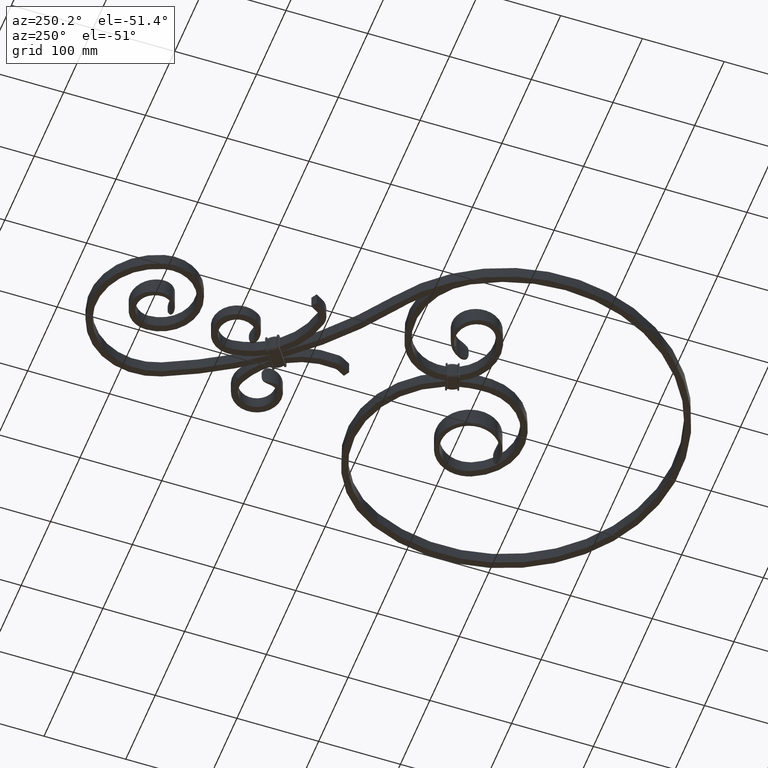
[diagram: clean part render]
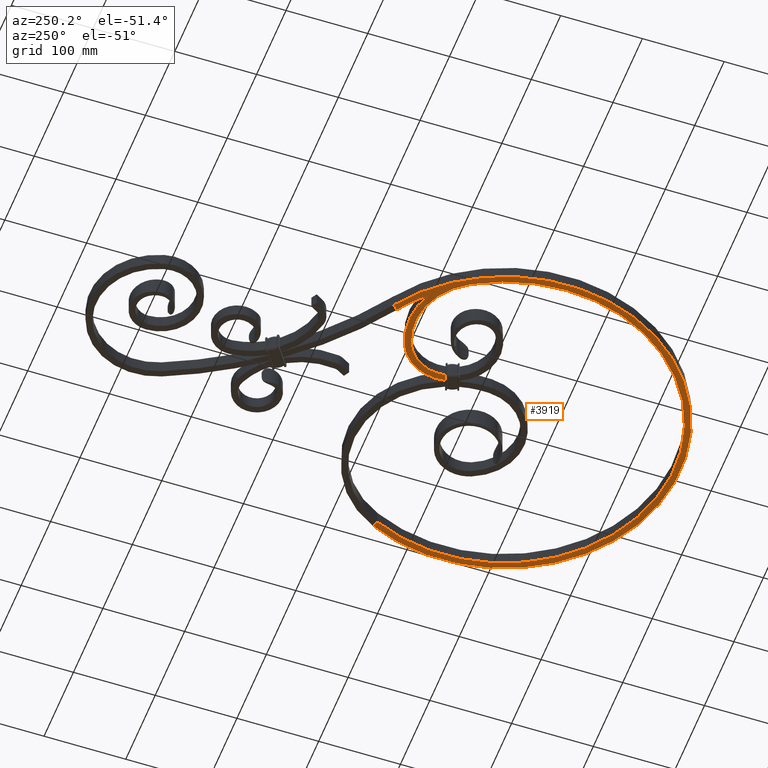
[diagram: same view with one face highlighted and labeled with its STEP entity id]
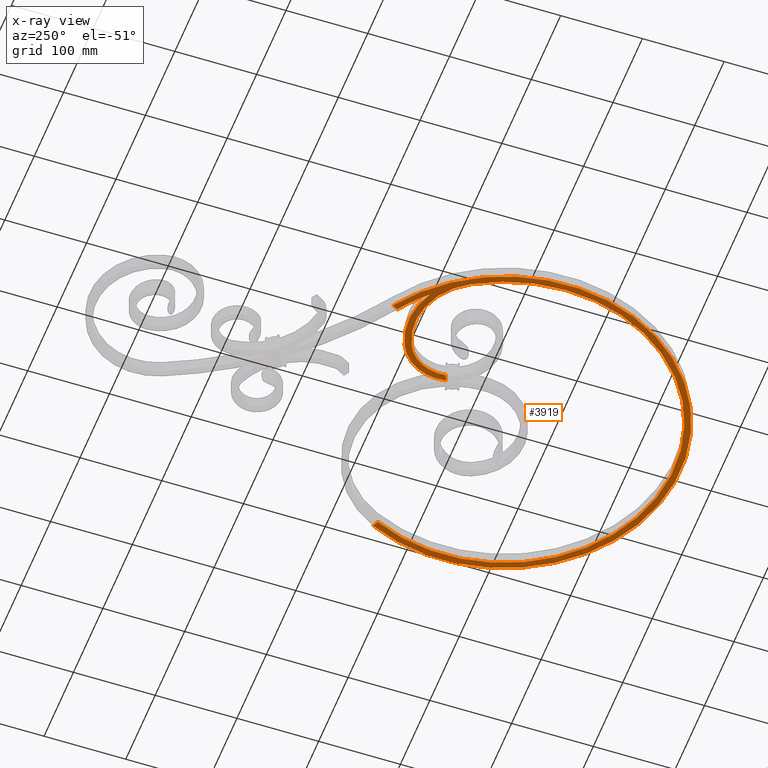
[diagram: x-ray of the same camera — body ghosted, the highlighted face saturated]
A machine part, auxiliary view. The second image highlights one B-rep face of the part: STEP entity #3919.
The next image is the same camera in x-ray: the body ghosted, the highlighted face saturated — about 0% of this face is hidden behind the body in this view.
In plain terms, the highlighted planar face has unit normal (-0, 0, -1).
Its self-contained STEP definition (entity closure, byte-faithful):
#981 = VERTEX_POINT ( 'NONE', #13501 ) ;
#1068 = DIRECTION ( 'NONE',  ( 1.000000000000000000, 0.000000000000000000, 0.000000000000000000 ) ) ;
#1156 = DIRECTION ( 'NONE',  ( -0.5519432724756188069, 0.8338816606503015594, 0.000000000000000000 ) ) ;
#1413 = CARTESIAN_POINT ( 'NONE',  ( 187.4867932403088560, -59.76344911916336855, -8.000000000000000000 ) ) ;
#1440 = CARTESIAN_POINT ( 'NONE',  ( -177.7859068469975057, -41.47560975609982137, -8.000000000000000000 ) ) ;
#1754 = CARTESIAN_POINT ( 'NONE',  ( -148.1103470283120771, -2.889056074054263679, -8.000000000000000000 ) ) ;
#1799 = CARTESIAN_POINT ( 'NONE',  ( -41.19751237565706958, -61.03284535278285006, -8.000000000000007105 ) ) ;
#1882 = CARTESIAN_POINT ( 'NONE',  ( -41.44403543703984383, -60.70040918255417495, -7.999999999999998224 ) ) ;
#1991 = DIRECTION ( 'NONE',  ( -0.5519432724756188069, 0.8338816606503015594, 0.000000000000000000 ) ) ;
#2193 = VERTEX_POINT ( 'NONE', #21779 ) ;
#2356 = ORIENTED_EDGE ( 'NONE', *, *, #22968, .T. ) ;
#2368 = ORIENTED_EDGE ( 'NONE', *, *, #21348, .T. ) ;
#2470 = AXIS2_PLACEMENT_3D ( 'NONE', #4671, #21317, #1068 ) ;
#2622 = ORIENTED_EDGE ( 'NONE', *, *, #9872, .F. ) ;
#2980 = AXIS2_PLACEMENT_3D ( 'NONE', #16616, #22241, #1991 ) ;
#3002 = CARTESIAN_POINT ( 'NONE',  ( 187.4867932403088560, -59.76344911916328329, -8.000000000000000000 ) ) ;
#3143 = DIRECTION ( 'NONE',  ( 0.000000000000000000, 0.000000000000000000, 1.000000000000000000 ) ) ;
#3441 = EDGE_CURVE ( 'NONE', #2193, #21456, #7836, .T. ) ;
#3462 = CARTESIAN_POINT ( 'NONE',  ( -132.5107105485927548, -30.55987532929423622, -8.000000000000000000 ) ) ;
#3784 = CARTESIAN_POINT ( 'NONE',  ( -42.00354003085679722, -60.24230092442795836, -8.000000000000000000 ) ) ;
#3919 = ADVANCED_FACE ( 'NONE', ( #18977 ), #8542, .T. ) ;
#3925 = AXIS2_PLACEMENT_3D ( 'NONE', #6746, #17859, #1156 ) ;
#4671 = CARTESIAN_POINT ( 'NONE',  ( -90.93716649349718750, -52.61343144355043933, -8.000000000000000000 ) ) ;
#4684 = CIRCLE ( 'NONE', #2980, 207.0000000000001137 ) ;
#4947 = DIRECTION ( 'NONE',  ( -1.000000000000000000, 0.000000000000000000, 0.000000000000000000 ) ) ;
#5119 = LINE ( 'NONE', #3002, #8553 ) ;
#5331 = EDGE_CURVE ( 'NONE', #6602, #16611, #14097, .T. ) ;
#5428 = CARTESIAN_POINT ( 'NONE',  ( -118.6678035822580313, 31.78455703981519775, -8.000000000000000000 ) ) ;
#5478 = CARTESIAN_POINT ( 'NONE',  ( -41.31980983160134002, -60.86804333350222151, -8.000000000000003553 ) ) ;
#6414 = CARTESIAN_POINT ( 'NONE',  ( -35.01792380272730298, -63.05948232502785089, -8.000000000000000000 ) ) ;
#6536 = CARTESIAN_POINT ( 'NONE',  ( -105.6409011699550575, -84.50000000000136424, -8.000000000000000000 ) ) ;
#6602 = VERTEX_POINT ( 'NONE', #1440 ) ;
#6746 = CARTESIAN_POINT ( 'NONE',  ( -1.665334536937734811E-13, -147.5000000000000284, -8.000000000000000000 ) ) ;
#6791 = EDGE_CURVE ( 'NONE', #981, #6602, #21541, .T. ) ;
#6959 = EDGE_CURVE ( 'NONE', #7763, #2193, #23876, .T. ) ;
#7223 = CARTESIAN_POINT ( 'NONE',  ( -41.73701762661197279, -60.41274993813826200, -8.000000000000000000 ) ) ;
#7465 = ORIENTED_EDGE ( 'NONE', *, *, #18483, .F. ) ;
#7523 = CARTESIAN_POINT ( 'NONE',  ( -41.90867752407184099, -60.29321759418958493, -8.000000000000003553 ) ) ;
#7763 = VERTEX_POINT ( 'NONE', #6414 ) ;
#7836 = CIRCLE ( 'NONE', #18943, 92.00000000000000000 ) ;
#7896 = CARTESIAN_POINT ( 'NONE',  ( -42.10406070864405592, -60.20933450284913135, -8.000000000000000000 ) ) ;
#8234 = EDGE_LOOP ( 'NONE', ( #14249, #2356, #14812, #21640, #14857, #11717, #2622, #7465, #19618, #2368, #21616, #20530 ) ) ;
#8542 = PLANE ( 'NONE',  #18012 ) ;
#8553 = VECTOR ( 'NONE', #12222, 1000.000000000000114 ) ;
#8613 = DIRECTION ( 'NONE',  ( 0.000000000000000000, 0.000000000000000000, 1.000000000000000000 ) ) ;
#9872 = EDGE_CURVE ( 'NONE', #19681, #16611, #5119, .T. ) ;
#9969 = VECTOR ( 'NONE', #15857, 1000.000000000000114 ) ;
#10321 = CARTESIAN_POINT ( 'NONE',  ( 194.7326596457314167, -56.37266454405857985, -8.000000000000000000 ) ) ;
#10450 = DIRECTION ( 'NONE',  ( 1.000000000000000000, 0.000000000000000000, 0.000000000000000000 ) ) ;
#10720 = CARTESIAN_POINT ( 'NONE',  ( -105.6409011699550575, -84.50000000000136424, -8.000000000000000000 ) ) ;
#10918 = EDGE_CURVE ( 'NONE', #18009, #11357, #16108, .T. ) ;
#11135 = DIRECTION ( 'NONE',  ( 0.5519432724756189179, -0.8338816606503014484, 0.000000000000000000 ) ) ;
#11357 = VERTEX_POINT ( 'NONE', #16082 ) ;
#11694 = AXIS2_PLACEMENT_3D ( 'NONE', #13634, #23021, #15706 ) ;
#11717 = ORIENTED_EDGE ( 'NONE', *, *, #5331, .T. ) ;
#12222 = DIRECTION ( 'NONE',  ( -0.9057333006778210960, -0.4238480718880998643, 0.000000000000000000 ) ) ;
#12372 = DIRECTION ( 'NONE',  ( -0.000000000000000000, 0.000000000000000000, -1.000000000000000000 ) ) ;
#12386 = VECTOR ( 'NONE', #18186, 1000.000000000000000 ) ;
#12736 = VERTEX_POINT ( 'NONE', #5428 ) ;
#12866 = LINE ( 'NONE', #23432, #9969 ) ;
#13501 = CARTESIAN_POINT ( 'NONE',  ( -70.46593643294055198, -8.219452966371720848, -8.000000000000000000 ) ) ;
#13581 = VECTOR ( 'NONE', #11135, 1000.000000000000114 ) ;
#13634 = CARTESIAN_POINT ( 'NONE',  ( -1.665334536937734811E-13, -147.5000000000000284, -8.000000000000000000 ) ) ;
#14097 = CIRCLE ( 'NONE', #3925, 207.0000000000001137 ) ;
#14249 = ORIENTED_EDGE ( 'NONE', *, *, #22068, .T. ) ;
#14339 = DIRECTION ( 'NONE',  ( 1.000000000000000000, 0.000000000000000000, 0.000000000000000000 ) ) ;
#14516 = VERTEX_POINT ( 'NONE', #15205 ) ;
#14577 = DIRECTION ( 'NONE',  ( 0.000000000000000000, 0.000000000000000000, 1.000000000000000000 ) ) ;
#14812 = ORIENTED_EDGE ( 'NONE', *, *, #10918, .T. ) ;
#14857 = ORIENTED_EDGE ( 'NONE', *, *, #6791, .T. ) ;
#15109 = CARTESIAN_POINT ( 'NONE',  ( -114.2522574024532673, 25.11350375461279683, -8.000000000000000000 ) ) ;
#15205 = CARTESIAN_POINT ( 'NONE',  ( -41.19751237565706958, -61.03284535278285006, -8.000000000000007105 ) ) ;
#15706 = DIRECTION ( 'NONE',  ( -0.5519432724756189179, 0.8338816606503016704, 0.000000000000000000 ) ) ;
#15857 = DIRECTION ( 'NONE',  ( -0.9502048491272323538, 0.3116259692244752744, -0.000000000000000000 ) ) ;
#15918 = AXIS2_PLACEMENT_3D ( 'NONE', #23634, #3143, #16205 ) ;
#16082 = CARTESIAN_POINT ( 'NONE',  ( -42.61810680688127206, -60.04074968270602142, -8.000000000000000000 ) ) ;
#16108 = LINE ( 'NONE', #3462, #12386 ) ;
#16205 = DIRECTION ( 'NONE',  ( 1.000000000000000000, 0.000000000000000000, 0.000000000000000000 ) ) ;
#16503 = CARTESIAN_POINT ( 'NONE',  ( -114.2522574024531252, 25.11350375461271511, -8.000000000000000000 ) ) ;
#16611 = VERTEX_POINT ( 'NONE', #1413 ) ;
#16616 = CARTESIAN_POINT ( 'NONE',  ( -1.665334536937734811E-13, -147.5000000000000284, -8.000000000000000000 ) ) ;
#17357 = B_SPLINE_CURVE_WITH_KNOTS ( 'NONE', 3,
 ( #1799, #5478, #1882, #21899, #7223, #7523, #3784, #18264 ),
 .UNSPECIFIED., .F., .F.,
 ( 4, 2, 2, 4 ),
 ( -6.324555320410321500E-06, 0.0006093436666991194515, 0.0009171777777088990476, 0.001225011888718678752 ),
 .UNSPECIFIED. ) ;
#17600 = CIRCLE ( 'NONE', #2470, 48.88656855644957488 ) ;
#17859 = DIRECTION ( 'NONE',  ( 0.000000000000000000, 0.000000000000000000, 1.000000000000000000 ) ) ;
#18009 = VERTEX_POINT ( 'NONE', #7896 ) ;
#18012 = AXIS2_PLACEMENT_3D ( 'NONE', #23478, #12372, #4947 ) ;
#18186 = DIRECTION ( 'NONE',  ( -0.9502048491272323538, 0.3116259692244752744, 0.000000000000000000 ) ) ;
#18264 = CARTESIAN_POINT ( 'NONE',  ( -42.10406070864405592, -60.20933450284913135, -8.000000000000000000 ) ) ;
#18483 = EDGE_CURVE ( 'NONE', #12736, #19681, #23405, .T. ) ;
#18943 = AXIS2_PLACEMENT_3D ( 'NONE', #10720, #14577, #14339 ) ;
#18977 = FACE_OUTER_BOUND ( 'NONE', #8234, .T. ) ;
#19341 = EDGE_CURVE ( 'NONE', #11357, #981, #17600, .T. ) ;
#19551 = EDGE_CURVE ( 'NONE', #12736, #21481, #20744, .T. ) ;
#19618 = ORIENTED_EDGE ( 'NONE', *, *, #19551, .T. ) ;
#19681 = VERTEX_POINT ( 'NONE', #10321 ) ;
#20530 = ORIENTED_EDGE ( 'NONE', *, *, #6959, .F. ) ;
#20744 = LINE ( 'NONE', #16503, #13581 ) ;
#20837 = AXIS2_PLACEMENT_3D ( 'NONE', #6536, #8613, #10450 ) ;
#21317 = DIRECTION ( 'NONE',  ( 0.000000000000000000, 0.000000000000000000, 1.000000000000000000 ) ) ;
#21348 = EDGE_CURVE ( 'NONE', #21481, #21456, #4684, .T. ) ;
#21456 = VERTEX_POINT ( 'NONE', #1754 ) ;
#21481 = VERTEX_POINT ( 'NONE', #15109 ) ;
#21541 = CIRCLE ( 'NONE', #20837, 83.99999999999998579 ) ;
#21616 = ORIENTED_EDGE ( 'NONE', *, *, #3441, .F. ) ;
#21640 = ORIENTED_EDGE ( 'NONE', *, *, #19341, .T. ) ;
#21779 = CARTESIAN_POINT ( 'NONE',  ( -67.11593979132015875, -0.9546389631688717570, -8.000000000000000000 ) ) ;
#21899 = CARTESIAN_POINT ( 'NONE',  ( -41.65994423547949310, -60.48096945289955073, -8.000000000000001776 ) ) ;
#22068 = EDGE_CURVE ( 'NONE', #7763, #14516, #12866, .T. ) ;
#22241 = DIRECTION ( 'NONE',  ( 0.000000000000000000, 0.000000000000000000, 1.000000000000000000 ) ) ;
#22968 = EDGE_CURVE ( 'NONE', #14516, #18009, #17357, .T. ) ;
#23021 = DIRECTION ( 'NONE',  ( 0.000000000000000000, 0.000000000000000000, 1.000000000000000000 ) ) ;
#23405 = CIRCLE ( 'NONE', #11694, 215.0000000000000568 ) ;
#23432 = CARTESIAN_POINT ( 'NONE',  ( -34.49856818931009173, -63.22980843581539290, -8.000000000000010658 ) ) ;
#23478 = CARTESIAN_POINT ( 'NONE',  ( -114.2522574024533100, 25.11350375461249129, -8.000000000000000000 ) ) ;
#23634 = CARTESIAN_POINT ( 'NONE',  ( -90.93716649349718750, -52.61343144355043933, -8.000000000000000000 ) ) ;
#23876 = CIRCLE ( 'NONE', #15918, 56.88656855644958199 ) ;